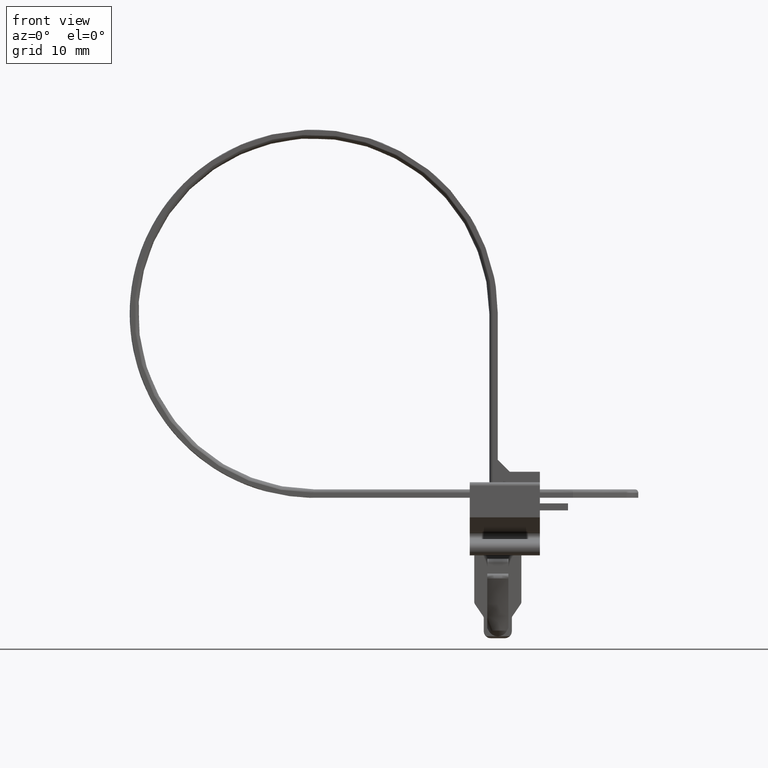
[diagram: clean part render]
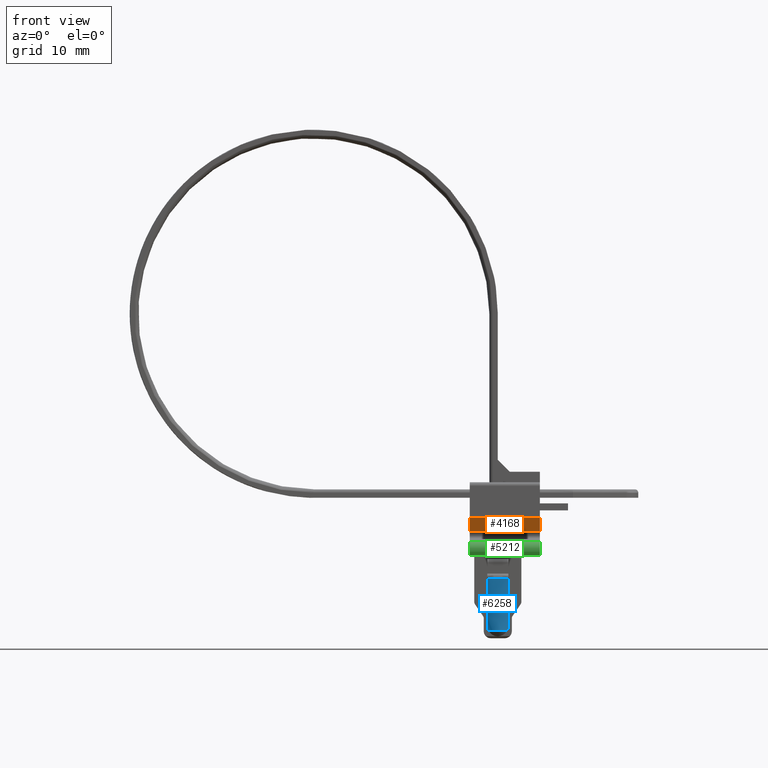
[diagram: same view with three faces highlighted in distinct colors, each labeled with its STEP entity id]
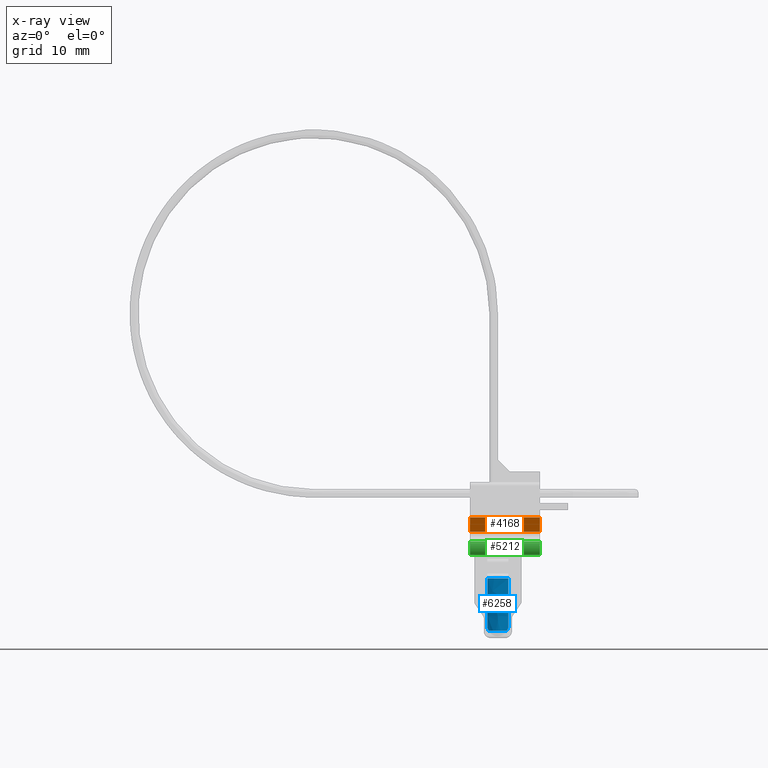
[diagram: x-ray of the same camera — body ghosted, the three highlighted faces saturated]
A machine part, front view with three faces highlighted in distinct colors.
The next image is the same camera in x-ray (body ghosted, the three faces saturated) — at least one of them is partly hidden behind the body in this view.
Their STEP definitions:

[orange] entity #4168 — the highlighted face is a freeform B-spline surface patch.
#4133=CARTESIAN_POINT('',(6.700499795909225,-2.455144716527223,-16.099911195498219));
#4134=CARTESIAN_POINT('',(6.700499795909225,-5.644854868624444,-13.900111090603581));
#4135=CARTESIAN_POINT('',(17.699501008753479,-2.455144716527223,-16.099911195498219));
#4136=CARTESIAN_POINT('',(17.699501008753479,-5.644854868624444,-13.900111090603581));
#4137=B_SPLINE_SURFACE_WITH_KNOTS('',1,1,((#4133,#4135),(#4134,#4136)),.UNSPECIFIED.,.F.,.F.,.U.,(2,2),(2,2),(0.0,3.874709196299322),(0.0,10.999001212844250),.UNSPECIFIED.);
#4138=CARTESIAN_POINT('',(17.199999999999999,-5.500000000000000,-14.000010999999761));
#4139=VERTEX_POINT('',#4138);
#4140=CARTESIAN_POINT('',(17.199999999999999,-2.600000000000000,-16.000010999999748));
#4141=VERTEX_POINT('',#4140);
#4142=CARTESIAN_POINT('',(17.199999999999999,-5.500000000000000,-14.000010999999761));
#4143=CARTESIAN_POINT('',(17.199999999999999,-2.600000000000000,-16.000010999999748));
#4144=QUASI_UNIFORM_CURVE('',1,(#4142,#4143),.UNSPECIFIED.,.F.,.U.);
#4145=EDGE_CURVE('',#4139,#4141,#4144,.T.);
#4146=ORIENTED_EDGE('',*,*,#4145,.F.);
#4147=CARTESIAN_POINT('',(7.200000000000000,-5.500000000000000,-14.000010999999761));
#4148=VERTEX_POINT('',#4147);
#4149=CARTESIAN_POINT('',(7.200000000000000,-5.500000000000000,-14.000010999999761));
#4150=CARTESIAN_POINT('',(17.199999999999999,-5.500000000000000,-14.000010999999761));
#4151=QUASI_UNIFORM_CURVE('',1,(#4149,#4150),.UNSPECIFIED.,.F.,.U.);
#4152=EDGE_CURVE('',#4148,#4139,#4151,.T.);
#4153=ORIENTED_EDGE('',*,*,#4152,.F.);
#4154=CARTESIAN_POINT('',(7.200000000000000,-2.600000000000000,-16.000010999999748));
#4155=VERTEX_POINT('',#4154);
#4156=CARTESIAN_POINT('',(7.200000000000000,-2.600000000000000,-16.000010999999748));
#4157=CARTESIAN_POINT('',(7.200000000000000,-5.500000000000000,-14.000010999999761));
#4158=QUASI_UNIFORM_CURVE('',1,(#4156,#4157),.UNSPECIFIED.,.F.,.U.);
#4159=EDGE_CURVE('',#4155,#4148,#4158,.T.);
#4160=ORIENTED_EDGE('',*,*,#4159,.F.);
#4161=CARTESIAN_POINT('',(17.199999999999999,-2.600000000000000,-16.000010999999748));
#4162=CARTESIAN_POINT('',(7.200000000000000,-2.600000000000000,-16.000010999999748));
#4163=QUASI_UNIFORM_CURVE('',1,(#4161,#4162),.UNSPECIFIED.,.F.,.U.);
#4164=EDGE_CURVE('',#4141,#4155,#4163,.T.);
#4165=ORIENTED_EDGE('',*,*,#4164,.F.);
#4166=EDGE_LOOP('',(#4146,#4153,#4160,#4165));
#4167=FACE_OUTER_BOUND('',#4166,.T.);
#4168=ADVANCED_FACE('',(#4167),#4137,.F.);

[blue] entity #6258 — the highlighted face is a freeform B-spline surface patch.
#313=CARTESIAN_POINT('',(9.893490135839809,-0.950000000000017,-30.123087999999800));
#314=VERTEX_POINT('',#313);
#325=CARTESIAN_POINT('',(9.700000000000001,-0.950000000000016,-29.738744531180750));
#326=VERTEX_POINT('',#325);
#327=CARTESIAN_POINT('',(9.700000000000001,-0.950000000000016,-29.738744531180750));
#328=CARTESIAN_POINT('',(9.893490135839809,-0.950000000000017,-30.123087999999800));
#329=QUASI_UNIFORM_CURVE('',1,(#327,#328),.UNSPECIFIED.,.F.,.U.);
#330=EDGE_CURVE('',#326,#314,#329,.T.);
#346=CARTESIAN_POINT('',(12.699999999999999,-0.949999999999920,-29.738744531181101));
#347=VERTEX_POINT('',#346);
#353=CARTESIAN_POINT('',(12.506509864160201,-0.950000000000017,-30.123087999999800));
#354=VERTEX_POINT('',#353);
#355=CARTESIAN_POINT('',(12.506509864160201,-0.950000000000017,-30.123087999999800));
#356=CARTESIAN_POINT('',(12.699999999999999,-0.949999999999920,-29.738744531181101));
#357=QUASI_UNIFORM_CURVE('',1,(#355,#356),.UNSPECIFIED.,.F.,.U.);
#358=EDGE_CURVE('',#354,#347,#357,.T.);
#6168=CARTESIAN_POINT('',(12.529878514661119,-0.772534268119283,-30.308857232681639));
#6169=CARTESIAN_POINT('',(15.342628702973011,-2.406477432231251,-22.501905229227159));
#6170=CARTESIAN_POINT('',(11.136189802390270,-3.171698617277374,-30.308857232681639));
#6171=CARTESIAN_POINT('',(11.001228493244879,-9.879977444752694,-22.501905229227162));
#6172=CARTESIAN_POINT('',(9.840125540697073,-0.718420151520986,-30.308857232681639));
#6173=CARTESIAN_POINT('',(6.963932640882064,-2.237909634357425,-22.501905229227159));
#6181=(BOUNDED_SURFACE()B_SPLINE_SURFACE(1,2,((#6168,#6170,#6172),(#6169,#6171,#6173)),.UNSPECIFIED.,.F.,.F.,.U.)B_SPLINE_SURFACE_WITH_KNOTS((2,2),(3,3),(0.0,8.457531168706314),(0.0,11.288169812426201),.UNSPECIFIED.)GEOMETRIC_REPRESENTATION_ITEM()RATIONAL_B_SPLINE_SURFACE(((1.0,0.484809620246337,1.0),(1.0,0.484809620246337,1.0)))REPRESENTATION_ITEM('')SURFACE());
#6182=CARTESIAN_POINT('',(9.700000000000001,-4.466384966940550,-22.692318692726051));
#6183=VERTEX_POINT('',#6182);
#6184=CARTESIAN_POINT('',(9.700000000000001,-0.950000000000016,-29.738744531180750));
#6185=CARTESIAN_POINT('',(9.700000000000001,-1.000131712980722,-29.674381407782750));
#6186=CARTESIAN_POINT('',(9.700000000000001,-1.048412003381962,-29.608776455711979));
#6187=CARTESIAN_POINT('',(9.700000000000001,-1.149754866115718,-29.465336627086110));
#6188=CARTESIAN_POINT('',(9.699999999999999,-1.202356215296950,-29.387192388346381));
#6189=CARTESIAN_POINT('',(9.699999999999999,-1.356338686178001,-29.150196376460720));
#6190=CARTESIAN_POINT('',(9.699999999999999,-1.453975379830635,-28.988833054539491));
#6191=CARTESIAN_POINT('',(9.699999999999999,-1.643438137310918,-28.662208971612358));
#6192=CARTESIAN_POINT('',(9.699999999999999,-1.735256955700545,-28.496796174528249));
#6193=CARTESIAN_POINT('',(9.699999999999998,-1.914673335438708,-28.164143251669049));
#6194=CARTESIAN_POINT('',(9.700000000000001,-2.002283994895032,-27.996834429280860));
#6195=CARTESIAN_POINT('',(9.700000000000001,-2.260807868199096,-27.492890296867841));
#6196=CARTESIAN_POINT('',(9.700000000000003,-2.427514309915314,-27.154284780032839));
#6197=CARTESIAN_POINT('',(9.699999999999996,-2.754910415226147,-26.474255838270849));
#6198=CARTESIAN_POINT('',(9.700000000000001,-2.915507356917544,-26.132788987810141));
#6199=CARTESIAN_POINT('',(9.700000000000003,-3.232944749767091,-25.448095965727578));
#6200=CARTESIAN_POINT('',(9.700000000000001,-3.389754959700122,-25.104855630878980));
#6201=CARTESIAN_POINT('',(9.699999999999999,-3.856424384969315,-24.073373097410840));
#6202=CARTESIAN_POINT('',(9.700000000000001,-4.162622009409201,-23.383416023087470));
#6203=CARTESIAN_POINT('',(9.700000000000001,-4.466384966940550,-22.692318692726051));
#6204=B_SPLINE_CURVE_WITH_KNOTS('',3,(#6184,#6185,#6186,#6187,#6188,#6189,#6190,#6191,#6192,#6193,#6194,#6195,#6196,#6197,#6198,#6199,#6200,#6201,#6202,#6203),.UNSPECIFIED.,.F.,.U.,(4,2,2,2,2,2,2,2,2,4),(0.564626603468862,0.578125000000009,0.593750000000009,0.625000000000008,0.656250000000007,0.687500000000006,0.750000000000005,0.812500000000004,0.875000000000003,1.0),.UNSPECIFIED.);
#6205=EDGE_CURVE('',#326,#6183,#6204,.T.);
#6206=ORIENTED_EDGE('',*,*,#6205,.F.);
#6207=ORIENTED_EDGE('',*,*,#330,.T.);
#6208=CARTESIAN_POINT('',(12.506509864160201,-0.950000000000017,-30.123087999999800));
#6209=CARTESIAN_POINT('',(12.380826869702201,-1.123279602346856,-30.123087999999822));
#6210=CARTESIAN_POINT('',(12.124676188662811,-1.358133017989540,-30.123087999999829));
#6211=CARTESIAN_POINT('',(11.652432782190040,-1.573005539000874,-30.123087999999779));
#6212=CARTESIAN_POINT('',(11.263221323870440,-1.630721764009566,-30.123087999999800));
#6213=CARTESIAN_POINT('',(10.883247839292380,-1.594169793415279,-30.123087999999839));
#6214=CARTESIAN_POINT('',(10.523716703178980,-1.488135688843759,-30.123087999999740));
#6215=CARTESIAN_POINT('',(10.168569322390940,-1.269402663220142,-30.123087999999900));
#6216=CARTESIAN_POINT('',(9.968058694607946,-1.052569025706405,-30.123087999999719));
#6217=CARTESIAN_POINT('',(9.893490135839809,-0.950000000000017,-30.123087999999800));
#6218=B_SPLINE_CURVE_WITH_KNOTS('',3,(#6208,#6209,#6210,#6211,#6212,#6213,#6214,#6215,#6216,#6217),.UNSPECIFIED.,.F.,.U.,(4,1,1,1,1,1,1,4),(0.000000167631707,0.642031067784492,1.022499952165297,1.545602730702459,1.807187250258488,2.163892664668924,2.663272105163185,3.043718503168094),.UNSPECIFIED.);
#6219=EDGE_CURVE('',#354,#314,#6218,.T.);
#6220=ORIENTED_EDGE('',*,*,#6219,.F.);
#6221=ORIENTED_EDGE('',*,*,#358,.T.);
#6222=CARTESIAN_POINT('',(12.699999999999999,-4.466384966940614,-22.692318692726051));
#6223=VERTEX_POINT('',#6222);
#6224=CARTESIAN_POINT('',(12.699999999999999,-0.949999999999920,-29.738744531181101));
#6225=CARTESIAN_POINT('',(12.699999999999999,-1.057210571934172,-29.601178311944341));
#6226=CARTESIAN_POINT('',(12.699999999999999,-1.156641858870635,-29.457432844969571));
#6227=CARTESIAN_POINT('',(12.699999999999999,-1.303810689004948,-29.231088263308330));
#6228=CARTESIAN_POINT('',(12.699999999999999,-1.354225849808123,-29.150671311228798));
#6229=CARTESIAN_POINT('',(12.699999999999999,-1.452835423966536,-28.988974580635180));
#6230=CARTESIAN_POINT('',(12.699999999999999,-1.501084130058476,-28.907603814281789));
#6231=CARTESIAN_POINT('',(12.699999999999999,-1.643392610088594,-28.662285713005222));
#6232=CARTESIAN_POINT('',(12.699999999999999,-1.735053357124142,-28.497151675353908));
#6233=CARTESIAN_POINT('',(12.699999999999999,-1.914286193313047,-28.164861104406139));
#6234=CARTESIAN_POINT('',(12.699999999999999,-2.001831851237213,-27.997691496636971));
#6235=CARTESIAN_POINT('',(12.699999999999999,-2.260208886702012,-27.494075452103210));
#6236=CARTESIAN_POINT('',(12.699999999999999,-2.426880305825532,-27.155571250168521));
#6237=CARTESIAN_POINT('',(12.699999999999999,-2.754262622461480,-26.475614414479018));
#6238=CARTESIAN_POINT('',(12.699999999999999,-2.914882537134468,-26.134116775149820));
#6239=CARTESIAN_POINT('',(12.699999999999999,-3.232398988291390,-25.449279690111510));
#6240=CARTESIAN_POINT('',(12.699999999999999,-3.389265728729540,-25.105925505489392));
#6241=CARTESIAN_POINT('',(12.699999999999999,-3.856136736754076,-24.074018258851979));
#6242=CARTESIAN_POINT('',(12.699999999999999,-4.162506463122662,-23.383677366239748));
#6243=CARTESIAN_POINT('',(12.699999999999999,-4.466384966940614,-22.692318692726051));
#6244=B_SPLINE_CURVE_WITH_KNOTS('',3,(#6224,#6225,#6226,#6227,#6228,#6229,#6230,#6231,#6232,#6233,#6234,#6235,#6236,#6237,#6238,#6239,#6240,#6241,#6242,#6243),.UNSPECIFIED.,.F.,.U.,(4,2,2,2,2,2,2,2,2,4),(0.564873901671623,0.593750000000009,0.609375000000009,0.625000000000009,0.656250000000009,0.687500000000008,0.750000000000007,0.812500000000005,0.875000000000003,1.0),.UNSPECIFIED.);
#6245=EDGE_CURVE('',#347,#6223,#6244,.T.);
#6246=ORIENTED_EDGE('',*,*,#6245,.T.);
#6247=CARTESIAN_POINT('',(12.699999999999999,-4.466384966940614,-22.692318692726051));
#6248=CARTESIAN_POINT('',(12.398522881182100,-4.567681296663874,-22.692318692726030));
#6249=CARTESIAN_POINT('',(11.884097144005940,-4.684108719648008,-22.692318692726062));
#6250=CARTESIAN_POINT('',(10.865737446611041,-4.740984521068179,-22.692318692726019));
#6251=CARTESIAN_POINT('',(10.167265320072829,-4.623583020010420,-22.692318692726111));
#6252=CARTESIAN_POINT('',(9.700000000000001,-4.466384966940550,-22.692318692726051));
#6253=B_SPLINE_CURVE_WITH_KNOTS('',3,(#6247,#6248,#6249,#6250,#6251,#6252),.UNSPECIFIED.,.F.,.U.,(4,1,1,4),(0.000000014374067,0.954111834435770,1.574269622769718,3.053153297141332),.UNSPECIFIED.);
#6254=EDGE_CURVE('',#6223,#6183,#6253,.T.);
#6255=ORIENTED_EDGE('',*,*,#6254,.T.);
#6256=EDGE_LOOP('',(#6206,#6207,#6220,#6221,#6246,#6255));
#6257=FACE_OUTER_BOUND('',#6256,.T.);
#6258=ADVANCED_FACE('',(#6257),#6181,.T.);

[green] entity #5212 — the highlighted face is a freeform B-spline surface patch.
#4940=CARTESIAN_POINT('',(7.200000000000100,-7.879256815548451,-19.183986959648550));
#4941=VERTEX_POINT('',#4940);
#4947=CARTESIAN_POINT('',(7.200000000000101,-9.474949335991969,-18.177373660182170));
#4948=VERTEX_POINT('',#4947);
#4949=CARTESIAN_POINT('',(7.200000000000100,-7.879256815548451,-19.183986959648550));
#4950=CARTESIAN_POINT('',(7.200000000000100,-7.974822383532044,-19.259795585633771));
#4951=CARTESIAN_POINT('',(7.200000000000104,-8.159510139444768,-19.357346146322769));
#4952=CARTESIAN_POINT('',(7.200000000000093,-8.414189170497346,-19.403305119984260));
#4953=CARTESIAN_POINT('',(7.200000000000093,-8.633050802102318,-19.398159648325031));
#4954=CARTESIAN_POINT('',(7.200000000000107,-8.860045254014308,-19.346034728350361));
#4955=CARTESIAN_POINT('',(7.200000000000101,-9.128315871382332,-19.201170096400411));
#4956=CARTESIAN_POINT('',(7.200000000000098,-9.345891515559615,-18.966735627841800));
#4957=CARTESIAN_POINT('',(7.200000000000100,-9.465006730234389,-18.700204769197189));
#4958=CARTESIAN_POINT('',(7.200000000000105,-9.509847884429515,-18.439348815353650));
#4959=CARTESIAN_POINT('',(7.200000000000102,-9.496426438029420,-18.271238292188180));
#4960=CARTESIAN_POINT('',(7.200000000000101,-9.474949335991969,-18.177373660182170));
#4961=B_SPLINE_CURVE_WITH_KNOTS('',3,(#4949,#4950,#4951,#4952,#4953,#4954,#4955,#4956,#4957,#4958,#4959,#4960),.UNSPECIFIED.,.F.,.U.,(4,1,1,1,1,1,1,1,1,4),(0.000000358479959,0.365911212977917,0.616276694216342,0.770346709324612,1.020721013820968,1.309556527007997,1.675486913485388,1.964384400183599,2.176241804223076,2.465104787078710),.UNSPECIFIED.);
#4962=EDGE_CURVE('',#4941,#4948,#4961,.T.);
#4964=CARTESIAN_POINT('',(7.200000000000100,-7.600477000000000,-17.963235999999899));
#4965=VERTEX_POINT('',#4964);
#4966=CARTESIAN_POINT('',(7.200000000000101,-9.474949335991969,-18.177373660182170));
#4967=CARTESIAN_POINT('',(7.200000000000102,-9.447897201901434,-18.058425873020660));
#4968=CARTESIAN_POINT('',(7.200000000000109,-9.364951760348550,-17.866744574158499));
#4969=CARTESIAN_POINT('',(7.200000000000098,-9.173928427755653,-17.647019697211469));
#4970=CARTESIAN_POINT('',(7.200000000000117,-8.939753264734188,-17.485070785906348));
#4971=CARTESIAN_POINT('',(7.200000000000054,-8.672613315198412,-17.400604825212390));
#4972=CARTESIAN_POINT('',(7.200000000000262,-8.381835922979461,-17.395569913670229));
#4973=CARTESIAN_POINT('',(7.199999999999810,-8.117379314587566,-17.460982713672571));
#4974=CARTESIAN_POINT('',(7.200000000000349,-7.820943141579224,-17.635163535393779));
#4975=CARTESIAN_POINT('',(7.200000000000048,-7.664796535520880,-17.830299688577721));
#4976=CARTESIAN_POINT('',(7.200000000000100,-7.600477000000000,-17.963235999999899));
#4977=B_SPLINE_CURVE_WITH_KNOTS('',3,(#4966,#4967,#4968,#4969,#4970,#4971,#4972,#4973,#4974,#4975,#4976),.UNSPECIFIED.,.F.,.U.,(4,1,1,1,1,1,1,1,4),(0.000000358501508,0.365910754657416,0.616275922270857,0.866658156351376,1.213335888667054,1.444388807103642,1.733270761815158,2.022167886570847,2.465101699247808),.UNSPECIFIED.);
#4978=EDGE_CURVE('',#4948,#4965,#4977,.T.);
#5132=CARTESIAN_POINT('',(17.199999999999999,-7.879256815548451,-19.183986959648550));
#5133=VERTEX_POINT('',#5132);
#5139=CARTESIAN_POINT('',(17.199999999999999,-7.879256815548451,-19.183986959648550));
#5140=CARTESIAN_POINT('',(7.200000000000100,-7.879256815548451,-19.183986959648550));
#5141=QUASI_UNIFORM_CURVE('',1,(#5139,#5140),.UNSPECIFIED.,.F.,.U.);
#5142=EDGE_CURVE('',#5133,#4941,#5141,.T.);
#5147=CARTESIAN_POINT('',(17.449999999999999,-7.596699894108535,-17.971102851811519));
#5148=CARTESIAN_POINT('',(6.943750000000101,-7.596699894108535,-17.971102851811519));
#5149=CARTESIAN_POINT('',(17.449999999999996,-8.067513244581466,-16.979495790545265));
#5150=CARTESIAN_POINT('',(6.943750000000100,-8.067513244581466,-16.979495790545265));
#5151=CARTESIAN_POINT('',(17.449999999999999,-9.011065395836210,-17.540440629900431));
#5152=CARTESIAN_POINT('',(6.943750000000101,-9.011065395836210,-17.540440629900431));
#5153=CARTESIAN_POINT('',(17.449999999999996,-9.954617547090955,-18.101385469255600));
#5154=CARTESIAN_POINT('',(6.943750000000100,-9.954617547090955,-18.101385469255600));
#5155=CARTESIAN_POINT('',(17.449999999999999,-9.308398114140513,-18.988713040907609));
#5156=CARTESIAN_POINT('',(6.943750000000101,-9.308398114140513,-18.988713040907609));
#5157=CARTESIAN_POINT('',(17.449999999999996,-8.662178681190067,-19.876040612559621));
#5158=CARTESIAN_POINT('',(6.943750000000100,-8.662178681190067,-19.876040612559621));
#5159=CARTESIAN_POINT('',(17.449999999999999,-7.838758542780548,-19.150141824436719));
#5160=CARTESIAN_POINT('',(6.943750000000101,-7.838758542780548,-19.150141824436719));
#5168=(BOUNDED_SURFACE()B_SPLINE_SURFACE(1,2,((#5147,#5149,#5151,#5153,#5155,#5157,#5159),(#5148,#5150,#5152,#5154,#5156,#5158,#5160)),.UNSPECIFIED.,.F.,.F.,.U.)B_SPLINE_SURFACE_WITH_KNOTS((2,2),(3,2,2,3),(0.0,10.506249999999900),(0.0,1.0,2.0,3.0),.UNSPECIFIED.)GEOMETRIC_REPRESENTATION_ITEM()RATIONAL_B_SPLINE_SURFACE(((1.0,0.673442699518900,1.0,0.673442699518900,1.0,0.673442699518900,1.0),(1.0,0.673442699518900,1.0,0.673442699518900,1.0,0.673442699518900,1.0)))REPRESENTATION_ITEM('')SURFACE());
#5169=ORIENTED_EDGE('',*,*,#4978,.F.);
#5170=ORIENTED_EDGE('',*,*,#4962,.F.);
#5171=ORIENTED_EDGE('',*,*,#5142,.F.);
#5172=CARTESIAN_POINT('',(17.199999999999999,-9.474949335991969,-18.177373660182170));
#5173=VERTEX_POINT('',#5172);
#5174=CARTESIAN_POINT('',(17.199999999999999,-7.879256815548451,-19.183986959648550));
#5175=CARTESIAN_POINT('',(17.199999999999999,-7.974822383532044,-19.259795585633771));
#5176=CARTESIAN_POINT('',(17.200000000000021,-8.159510139444770,-19.357346146322769));
#5177=CARTESIAN_POINT('',(17.199999999999971,-8.414189170497345,-19.403305119984260));
#5178=CARTESIAN_POINT('',(17.199999999999999,-8.633050802102320,-19.398159648325031));
#5179=CARTESIAN_POINT('',(17.199999999999999,-8.860045254014308,-19.346034728350361));
#5180=CARTESIAN_POINT('',(17.200000000000010,-9.128315871382332,-19.201170096400411));
#5181=CARTESIAN_POINT('',(17.199999999999989,-9.345891515559615,-18.966735627841800));
#5182=CARTESIAN_POINT('',(17.199999999999989,-9.465006730234389,-18.700204769197189));
#5183=CARTESIAN_POINT('',(17.200000000000010,-9.509847884429515,-18.439348815353650));
#5184=CARTESIAN_POINT('',(17.199999999999989,-9.496426438029420,-18.271238292188190));
#5185=CARTESIAN_POINT('',(17.199999999999999,-9.474949335991969,-18.177373660182170));
#5186=B_SPLINE_CURVE_WITH_KNOTS('',3,(#5174,#5175,#5176,#5177,#5178,#5179,#5180,#5181,#5182,#5183,#5184,#5185),.UNSPECIFIED.,.F.,.U.,(4,1,1,1,1,1,1,1,1,4),(0.000000358479959,0.365911212977917,0.616276694216342,0.770346709324612,1.020721013820968,1.309556527007997,1.675486913485388,1.964384400183599,2.176241804223076,2.465104787078710),.UNSPECIFIED.);
#5187=EDGE_CURVE('',#5133,#5173,#5186,.T.);
#5188=ORIENTED_EDGE('',*,*,#5187,.T.);
#5189=CARTESIAN_POINT('',(17.199999999999999,-7.600477000000000,-17.963235999999899));
#5190=VERTEX_POINT('',#5189);
#5191=CARTESIAN_POINT('',(17.199999999999999,-9.474949335991969,-18.177373660182170));
#5192=CARTESIAN_POINT('',(17.200000000000010,-9.447897201901371,-18.058425873020749));
#5193=CARTESIAN_POINT('',(17.199999999999999,-9.364951760348736,-17.866744574158179));
#5194=CARTESIAN_POINT('',(17.199999999999999,-9.173928427739334,-17.647019697374290));
#5195=CARTESIAN_POINT('',(17.200000000000031,-8.939753264831504,-17.485070784932049));
#5196=CARTESIAN_POINT('',(17.199999999999900,-8.672613314865313,-17.400604828463180));
#5197=CARTESIAN_POINT('',(17.200000000000379,-8.381835923960447,-17.395569904256281));
#5198=CARTESIAN_POINT('',(17.199999999999310,-8.117379314989059,-17.460982689132770));
#5199=CARTESIAN_POINT('',(17.200000000000561,-7.820943133720732,-17.635163718289089));
#5200=CARTESIAN_POINT('',(17.199999999999889,-7.664796547729065,-17.830299350037571));
#5201=CARTESIAN_POINT('',(17.199999999999999,-7.600477000000000,-17.963235999999899));
#5202=B_SPLINE_CURVE_WITH_KNOTS('',3,(#5191,#5192,#5193,#5194,#5195,#5196,#5197,#5198,#5199,#5200,#5201),.UNSPECIFIED.,.F.,.U.,(4,1,1,1,1,1,1,1,4),(0.000000358501508,0.365910754657416,0.616275922270857,0.866658156351376,1.213335888667054,1.444388807103642,1.733270761815158,2.022167886570847,2.465101699247808),.UNSPECIFIED.);
#5203=EDGE_CURVE('',#5173,#5190,#5202,.T.);
#5204=ORIENTED_EDGE('',*,*,#5203,.T.);
#5205=CARTESIAN_POINT('',(17.199999999999999,-7.600477000000000,-17.963235999999899));
#5206=CARTESIAN_POINT('',(7.200000000000100,-7.600477000000000,-17.963235999999899));
#5207=QUASI_UNIFORM_CURVE('',1,(#5205,#5206),.UNSPECIFIED.,.F.,.U.);
#5208=EDGE_CURVE('',#5190,#4965,#5207,.T.);
#5209=ORIENTED_EDGE('',*,*,#5208,.T.);
#5210=EDGE_LOOP('',(#5169,#5170,#5171,#5188,#5204,#5209));
#5211=FACE_OUTER_BOUND('',#5210,.T.);
#5212=ADVANCED_FACE('',(#5211),#5168,.T.);